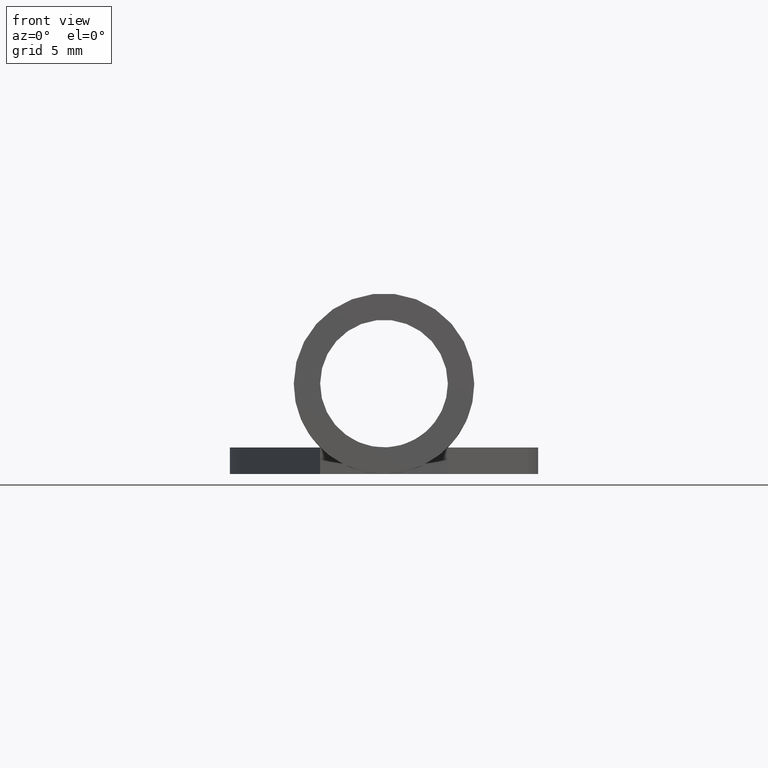
[diagram: clean part render]
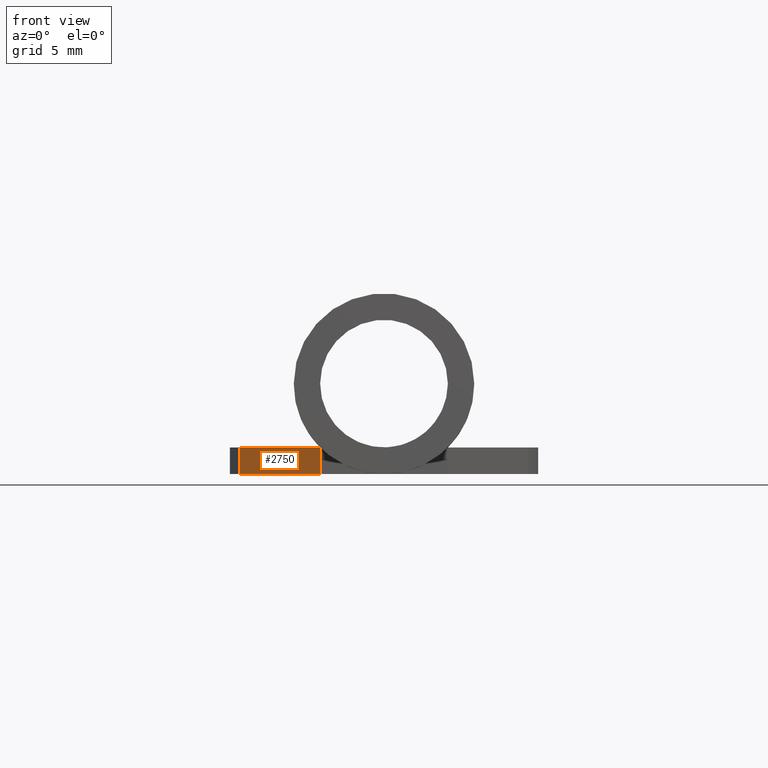
[diagram: same view with one face highlighted and labeled with its STEP entity id]
A machine part, front view. The second image highlights one B-rep face of the part: STEP entity #2750.
In plain terms, the highlighted planar face has unit normal (-0.9339, -0.3577, -0).
Its self-contained STEP definition (entity closure, byte-faithful):
#590=CARTESIAN_POINT('',(-4.74027569543881,208.750547234379,
127.310237543151));
#600=VERTEX_POINT('',#590);
#820=CARTESIAN_POINT('',(4.10211751548192,203.801003531408,
126.459297218659));
#830=VERTEX_POINT('',#820);
#860=CARTESIAN_POINT('',(0.,206.097170353363,126.854061071211));
#870=DIRECTION('',(-0.869537976951975,0.486725269466766,
0.0836792608761059));
#880=VECTOR('',#870,1.);
#890=LINE('',#860,#880);
#900=EDGE_CURVE('',#830,#600,#890,.T.);
#1680=CARTESIAN_POINT('',(-4.74027570253843,208.953871800878,
126.127588347211));
#1690=VERTEX_POINT('',#1680);
#1910=CARTESIAN_POINT('',(4.10211750601575,204.072102953407,
124.882431624072));
#1920=DIRECTION('',(5.91634389571428E-9,-0.169437138749457,
0.985540996616781));
#1930=VECTOR('',#1920,1.);
#1940=LINE('',#1910,#1930);
#1950=CARTESIAN_POINT('',(4.10211750838229,204.004328097907,
125.276648022719));
#1960=VERTEX_POINT('',#1950);
#1970=EDGE_CURVE('',#1960,#830,#1940,.T.);
#2540=CARTESIAN_POINT('',(4.10211750601575,204.072102953407,
124.882431624072));
#2550=DIRECTION('',(-0.493866081684364,-0.856965324896464,
-0.1473320239691));
#2560=DIRECTION('',(0.869537976951975,-0.486725269466766,
-0.0836792608761058));
#2570=AXIS2_PLACEMENT_3D('',#2540,#2550,#2560);
#2580=PLANE('',#2570);
#2590=CARTESIAN_POINT('',(-4.74027570490497,209.021646656378,
125.733371948564));
#2600=DIRECTION('',(5.91634389571428E-9,-0.169437138749457,
0.985540996616781));
#2610=VECTOR('',#2600,1.);
#2620=LINE('',#2590,#2610);
#2630=EDGE_CURVE('',#1690,#600,#2620,.T.);
#2640=ORIENTED_EDGE('',*,*,#2630,.F.);
#2650=ORIENTED_EDGE('',*,*,#900,.T.);
#2660=ORIENTED_EDGE('',*,*,#1970,.T.);
#2670=CARTESIAN_POINT('',(0.,206.300494915889,125.671411874588));
#2680=DIRECTION('',(-0.869537976951975,0.486725269466766,
0.0836792608761059));
#2690=VECTOR('',#2680,1.);
#2700=LINE('',#2670,#2690);
#2710=EDGE_CURVE('',#1960,#1690,#2700,.T.);
#2720=ORIENTED_EDGE('',*,*,#2710,.F.);
#2730=EDGE_LOOP('',(#2720,#2660,#2650,#2640));
#2740=FACE_OUTER_BOUND('',#2730,.T.);
#2750=ADVANCED_FACE('',(#2740),#2580,.T.);